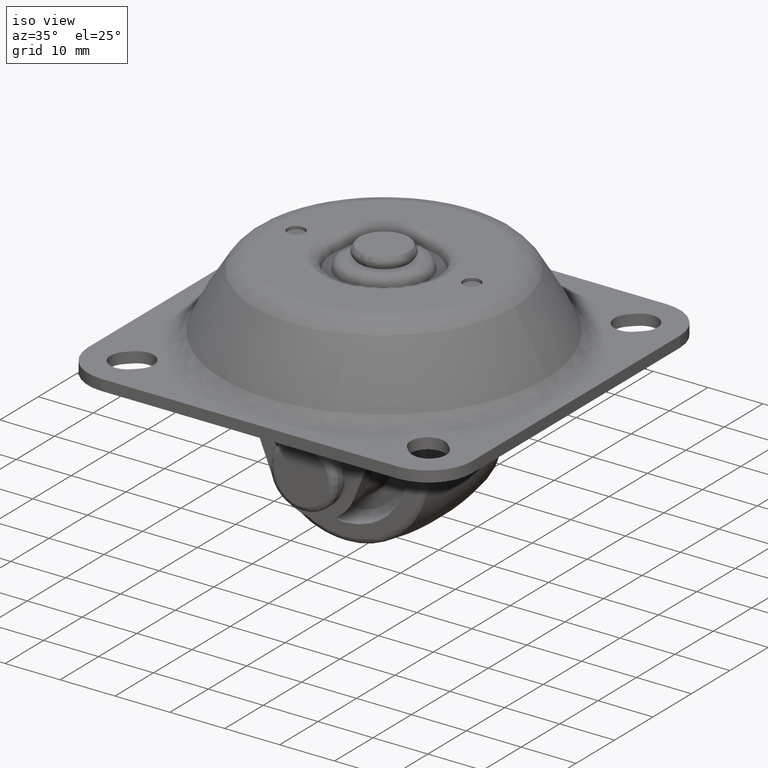
[diagram: clean part render]
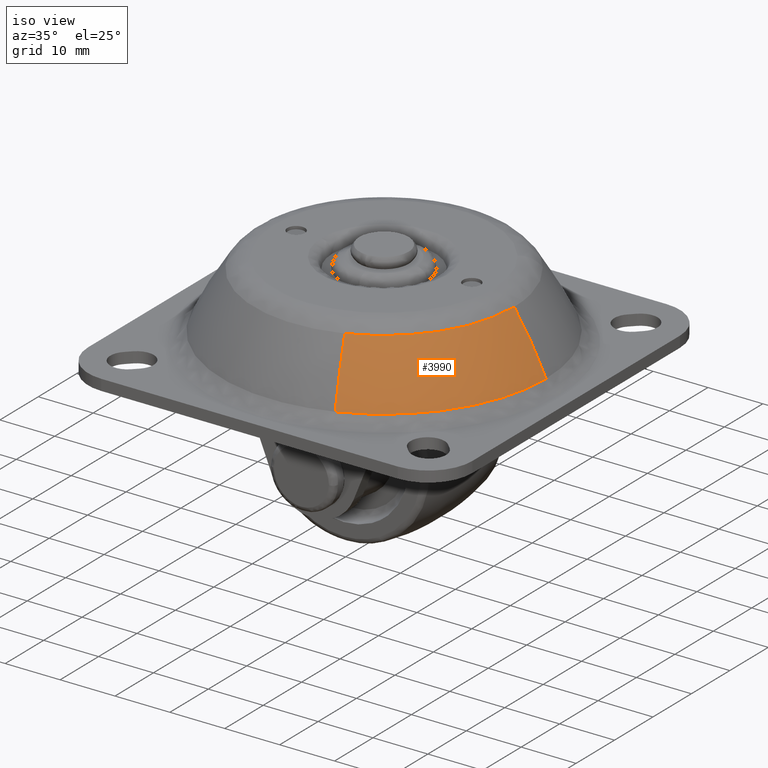
[diagram: same view with one face highlighted and labeled with its STEP entity id]
A machine part, iso view. The second image highlights one B-rep face of the part: STEP entity #3990.
In plain terms, the highlighted face is a freeform B-spline surface patch.
Its self-contained STEP definition (entity closure, byte-faithful):
#2395=CARTESIAN_POINT('',(8.375598990515535,-22.177826453349951,26.027003537547621));
#2396=VERTEX_POINT('',#2395);
#2417=CARTESIAN_POINT('',(23.706707534813990,0.0,26.026962988338688));
#2418=VERTEX_POINT('',#2417);
#2419=CARTESIAN_POINT('',(23.706707534813990,0.0,26.026962988338688));
#2420=CARTESIAN_POINT('',(23.706858189709799,-1.456310018094556,26.026964789905719));
#2421=CARTESIAN_POINT('',(23.471974180108820,-3.995451065373374,26.026968132121180));
#2422=CARTESIAN_POINT('',(22.601279524827170,-7.365680871336688,26.026973046293200));
#2423=CARTESIAN_POINT('',(21.448531374848351,-10.248483962976620,26.026977598657741));
#2424=CARTESIAN_POINT('',(19.901075597976931,-13.028229204018620,26.026982361086940));
#2425=CARTESIAN_POINT('',(17.953037266571361,-15.592065946548310,26.026987198991488));
#2426=CARTESIAN_POINT('',(15.574524047366211,-17.975267892251772,26.026992181573618));
#2427=CARTESIAN_POINT('',(12.496383482645509,-20.300779298186239,26.026997691125011));
#2428=CARTESIAN_POINT('',(9.912745442708461,-21.597569361372781,26.027001505064359));
#2429=CARTESIAN_POINT('',(8.375598990515535,-22.177826453349951,26.027003537547621));
#2430=B_SPLINE_CURVE_WITH_KNOTS('',3,(#2419,#2420,#2421,#2422,#2423,#2424,#2425,#2426,#2427,#2428,#2429),.UNSPECIFIED.,.F.,.U.,(4,1,1,1,1,1,1,1,4),(0.000000027873710,4.368905988751319,7.617591989225421,10.418181273367260,13.666880086948300,17.139560289658210,20.052182696618100,23.748962907425810,28.677986259415331),.UNSPECIFIED.);
#2431=EDGE_CURVE('',#2418,#2396,#2430,.T.);
#2717=CARTESIAN_POINT('',(29.513805084109869,0.0,15.769866860375220));
#2718=VERTEX_POINT('',#2717);
#2728=CARTESIAN_POINT('',(10.427255878586360,-27.610431094556009,15.769909070707540));
#2729=VERTEX_POINT('',#2728);
#2730=CARTESIAN_POINT('',(10.427255878586360,-27.610431094556009,15.769909070707540));
#2731=CARTESIAN_POINT('',(11.731977131867991,-27.117754822933549,15.769907628058530));
#2732=CARTESIAN_POINT('',(14.356017962307890,-25.907944397018401,15.769904500130520));
#2733=CARTESIAN_POINT('',(18.220669472133238,-23.384590774864400,15.769899126252261));
#2734=CARTESIAN_POINT('',(21.352346917284908,-20.516455957383410,15.769893919860660));
#2735=CARTESIAN_POINT('',(23.959541723588551,-17.356740575341782,15.769888786898060));
#2736=CARTESIAN_POINT('',(26.044735030510680,-14.099437793208450,15.769883926266941));
#2737=CARTESIAN_POINT('',(27.564271068440590,-10.744464127156981,15.769879369098520));
#2738=CARTESIAN_POINT('',(28.675625926451389,-7.240595921815824,15.769874949794421));
#2739=CARTESIAN_POINT('',(29.347515752007521,-3.858499370557409,15.769870970716310));
#2740=CARTESIAN_POINT('',(29.513838769611620,-1.255173103968317,15.769868158766171));
#2741=CARTESIAN_POINT('',(29.513805084109869,0.0,15.769866860375220));
#2742=B_SPLINE_CURVE_WITH_KNOTS('',3,(#2730,#2731,#2732,#2733,#2734,#2735,#2736,#2737,#2738,#2739,#2740,#2741),.UNSPECIFIED.,.F.,.U.,(4,1,1,1,1,1,1,1,1,4),(0.000000026665958,4.183925853429511,8.646780604810182,13.806973913176350,16.875196600197249,20.919628359188859,25.382482786999400,27.892845837606441,31.937315732168958,35.702837592788541),.UNSPECIFIED.);
#2743=EDGE_CURVE('',#2729,#2718,#2742,.T.);
#3937=CARTESIAN_POINT('',(10.427255878586360,-27.610431094556009,15.769909070707540));
#3938=CARTESIAN_POINT('',(9.857353650159510,-26.101379885565049,19.358661610853819));
#3939=CARTESIAN_POINT('',(9.169512195908999,-24.280037000265740,22.797220737491980));
#3940=CARTESIAN_POINT('',(8.375598990515535,-22.177826453349951,26.027003537547621));
#3941=B_SPLINE_CURVE_WITH_KNOTS('',3,(#3937,#3938,#3939,#3940),.UNSPECIFIED.,.F.,.U.,(4,4),(3.742731E-010,11.803764584131960),.UNSPECIFIED.);
#3942=EDGE_CURVE('',#2729,#2396,#3941,.T.);
#3948=CARTESIAN_POINT('',(29.513805084109869,0.0,15.769866860375220));
#3949=CARTESIAN_POINT('',(27.900734123372882,0.0,19.358622151903631));
#3950=CARTESIAN_POINT('',(25.953826584511980,0.0,22.797175857496519));
#3951=CARTESIAN_POINT('',(23.706707534813990,0.0,26.026962988338688));
#3952=B_SPLINE_CURVE_WITH_KNOTS('',3,(#3948,#3949,#3950,#3951),.UNSPECIFIED.,.F.,.U.,(4,4),(3.729532E-010,11.803761470240300),.UNSPECIFIED.);
#3953=EDGE_CURVE('',#2718,#2418,#3952,.T.);
#3961=CARTESIAN_POINT('',(29.752253260087347,0.159533937460148,15.232875004853289));
#3962=CARTESIAN_POINT('',(27.136508132315544,0.145508104997051,21.197625484907547));
#3963=CARTESIAN_POINT('',(23.367674502029310,0.125299320693699,26.509523820718673));
#3964=CARTESIAN_POINT('',(29.752253260087340,0.079855650262963,15.232875004853289));
#3965=CARTESIAN_POINT('',(27.136508132315544,0.072834937368568,21.197625484907547));
#3966=CARTESIAN_POINT('',(23.367674502029310,0.062719311582229,26.509523820718666));
#3967=CARTESIAN_POINT('',(29.752253260087343,-20.567109905845019,15.232875004853293));
#3968=CARTESIAN_POINT('',(27.136508132315541,-18.758900051678051,21.197625484907551));
#3969=CARTESIAN_POINT('',(23.367674502029303,-16.153584252120538,26.509523820718663));
#3970=CARTESIAN_POINT('',(10.427836738459245,-27.865117954146552,15.232875004853287));
#3971=CARTESIAN_POINT('',(9.511046910697994,-25.415285133547208,21.197625484907547));
#3972=CARTESIAN_POINT('',(8.190112276017347,-21.885502271744169,26.509523820718673));
#3973=CARTESIAN_POINT('',(10.344251807441772,-27.896684418189572,15.232875004853295));
#3974=CARTESIAN_POINT('',(9.434810561791354,-25.444076351500478,21.197625484907547));
#3975=CARTESIAN_POINT('',(8.124463955393809,-21.910294842931599,26.509523820718677));
#3983=(BOUNDED_SURFACE()B_SPLINE_SURFACE(2,2,((#3961,#3964,#3967,#3970,#3973),(#3962,#3965,#3968,#3971,#3974),(#3963,#3966,#3969,#3972,#3975)),.UNSPECIFIED.,.F.,.F.,.U.)B_SPLINE_SURFACE_WITH_KNOTS((3,3),(3,1,1,3),(0.0,12.992299025926620),(0.0,0.185488574779101,37.283178441068408,37.468692934576623),.UNSPECIFIED.)GEOMETRIC_REPRESENTATION_ITEM()RATIONAL_B_SPLINE_SURFACE(((0.932129679288526,0.931094527880475,0.723029234878703,0.831223258485970,0.831761612413288),(0.925519661414958,0.924491850583504,0.717902012484810,0.825328799037247,0.825863335331503),(0.928565117654908,0.927533924774384,0.720264295270086,0.828044573586213,0.828580868791663)))REPRESENTATION_ITEM('')SURFACE());
#3984=ORIENTED_EDGE('',*,*,#2743,.T.);
#3985=ORIENTED_EDGE('',*,*,#3953,.T.);
#3986=ORIENTED_EDGE('',*,*,#2431,.T.);
#3987=ORIENTED_EDGE('',*,*,#3942,.F.);
#3988=EDGE_LOOP('',(#3984,#3985,#3986,#3987));
#3989=FACE_OUTER_BOUND('',#3988,.T.);
#3990=ADVANCED_FACE('',(#3989),#3983,.T.);